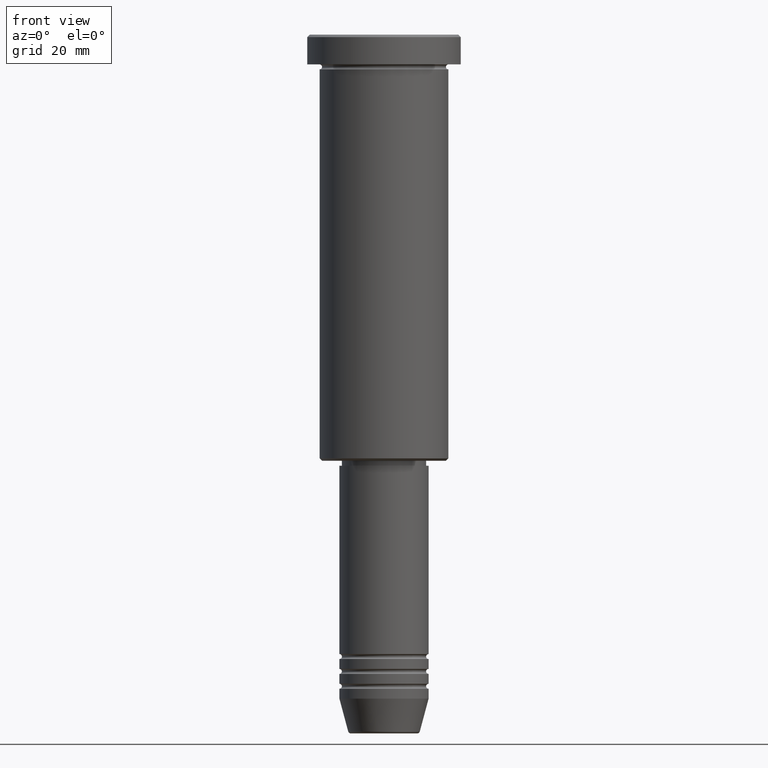
[diagram: clean part render]
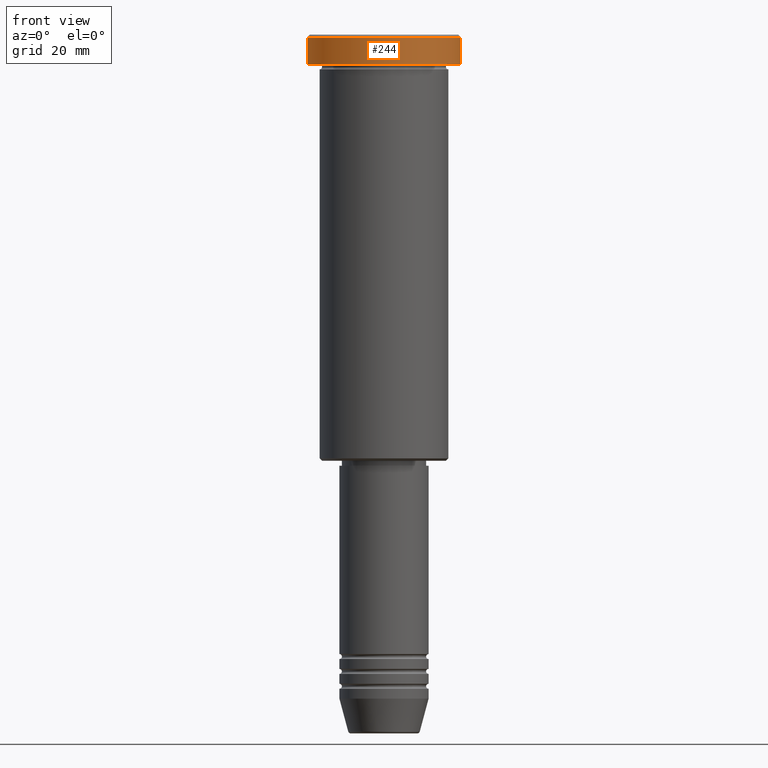
[diagram: same view with one face highlighted and labeled with its STEP entity id]
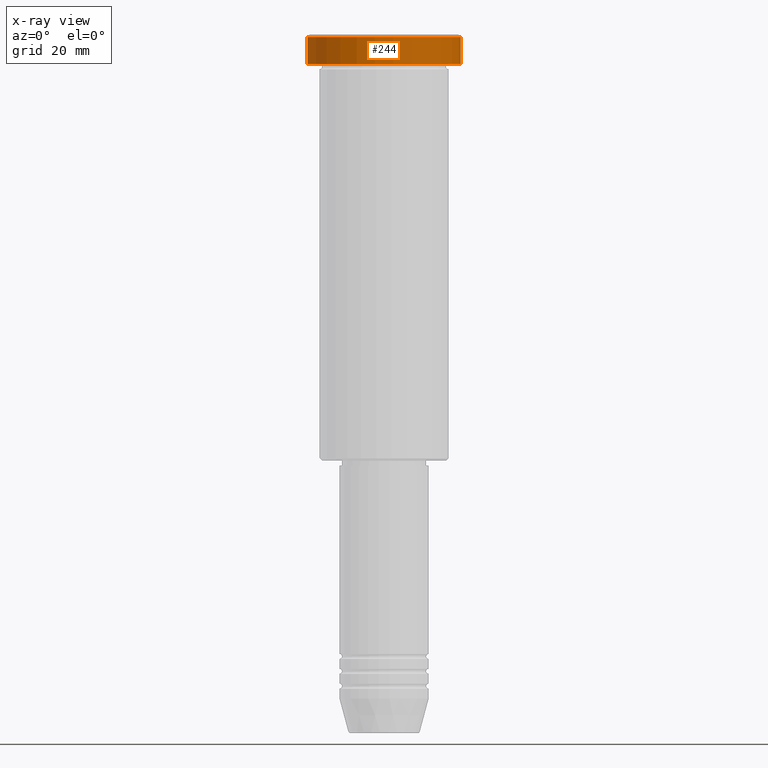
[diagram: x-ray of the same camera — body ghosted, the highlighted face saturated]
A machine part, front view. The second image highlights one B-rep face of the part: STEP entity #244.
The next image is the same camera in x-ray: the body ghosted, the highlighted face saturated — about 0% of this face is hidden behind the body in this view.
In plain terms, the highlighted cylindrical surface (partial cylindrical patch) has radius 15.5 mm, axis along (-0, -0, 1).
Its self-contained STEP definition (entity closure, byte-faithful):
#59 = CARTESIAN_POINT ( 'NONE',  ( 0.000000000000000000, 0.000000000000000000, -0.5000000000000125455 ) ) ;
#61 = CARTESIAN_POINT ( 'NONE',  ( 0.000000000000000000, 0.000000000000000000, 0.000000000000000000 ) ) ;
#63 = AXIS2_PLACEMENT_3D ( 'NONE', #816, #101, #566 ) ;
#68 = CIRCLE ( 'NONE', #387, 15.50000000000000000 ) ;
#100 = AXIS2_PLACEMENT_3D ( 'NONE', #61, #440, #205 ) ;
#101 = DIRECTION ( 'NONE',  ( -0.000000000000000000, -0.000000000000000000, 1.000000000000000000 ) ) ;
#134 = EDGE_CURVE ( 'NONE', #299, #1089, #68, .T. ) ;
#151 = CARTESIAN_POINT ( 'NONE',  ( -15.50000000000000000, 1.898202538678397557E-15, -0.5000000000000125455 ) ) ;
#205 = DIRECTION ( 'NONE',  ( 1.000000000000000000, 0.000000000000000000, 0.000000000000000000 ) ) ;
#213 = EDGE_LOOP ( 'NONE', ( #520, #535, #274, #859 ) ) ;
#226 = DIRECTION ( 'NONE',  ( -0.000000000000000000, -0.000000000000000000, 1.000000000000000000 ) ) ;
#244 = ADVANCED_FACE ( 'NONE', ( #978 ), #881, .T. ) ;
#274 = ORIENTED_EDGE ( 'NONE', *, *, #911, .T. ) ;
#299 = VERTEX_POINT ( 'NONE', #454 ) ;
#387 = AXIS2_PLACEMENT_3D ( 'NONE', #59, #885, #786 ) ;
#399 = CARTESIAN_POINT ( 'NONE',  ( 15.50000000000000000, 0.000000000000000000, 0.000000000000000000 ) ) ;
#440 = DIRECTION ( 'NONE',  ( -0.000000000000000000, -0.000000000000000000, 1.000000000000000000 ) ) ;
#454 = CARTESIAN_POINT ( 'NONE',  ( 15.50000000000000000, 0.000000000000000000, -0.5000000000000125455 ) ) ;
#469 = CARTESIAN_POINT ( 'NONE',  ( -15.50000000000000000, 1.898202538678397557E-15, 0.000000000000000000 ) ) ;
#470 = EDGE_CURVE ( 'NONE', #670, #949, #788, .T. ) ;
#501 = CARTESIAN_POINT ( 'NONE',  ( -15.50000000000000000, 1.898202538678397557E-15, -5.999999999999995559 ) ) ;
#520 = ORIENTED_EDGE ( 'NONE', *, *, #588, .F. ) ;
#535 = ORIENTED_EDGE ( 'NONE', *, *, #470, .T. ) ;
#548 = LINE ( 'NONE', #469, #810 ) ;
#555 = DIRECTION ( 'NONE',  ( -0.000000000000000000, -0.000000000000000000, 1.000000000000000000 ) ) ;
#566 = DIRECTION ( 'NONE',  ( 1.000000000000000000, 0.000000000000000000, 0.000000000000000000 ) ) ;
#587 = CARTESIAN_POINT ( 'NONE',  ( 15.50000000000000000, 0.000000000000000000, -5.999999999999995559 ) ) ;
#588 = EDGE_CURVE ( 'NONE', #670, #1089, #548, .T. ) ;
#670 = VERTEX_POINT ( 'NONE', #501 ) ;
#786 = DIRECTION ( 'NONE',  ( 1.000000000000000000, 0.000000000000000000, 0.000000000000000000 ) ) ;
#788 = CIRCLE ( 'NONE', #63, 15.50000000000000000 ) ;
#810 = VECTOR ( 'NONE', #555, 1000.000000000000000 ) ;
#816 = CARTESIAN_POINT ( 'NONE',  ( 0.000000000000000000, 0.000000000000000000, -5.999999999999995559 ) ) ;
#859 = ORIENTED_EDGE ( 'NONE', *, *, #134, .T. ) ;
#881 = CYLINDRICAL_SURFACE ( 'NONE', #100, 15.50000000000000000 ) ;
#885 = DIRECTION ( 'NONE',  ( 0.000000000000000000, 0.000000000000000000, -1.000000000000000000 ) ) ;
#911 = EDGE_CURVE ( 'NONE', #949, #299, #1036, .T. ) ;
#949 = VERTEX_POINT ( 'NONE', #587 ) ;
#978 = FACE_OUTER_BOUND ( 'NONE', #213, .T. ) ;
#1036 = LINE ( 'NONE', #399, #1155 ) ;
#1089 = VERTEX_POINT ( 'NONE', #151 ) ;
#1155 = VECTOR ( 'NONE', #226, 1000.000000000000000 ) ;